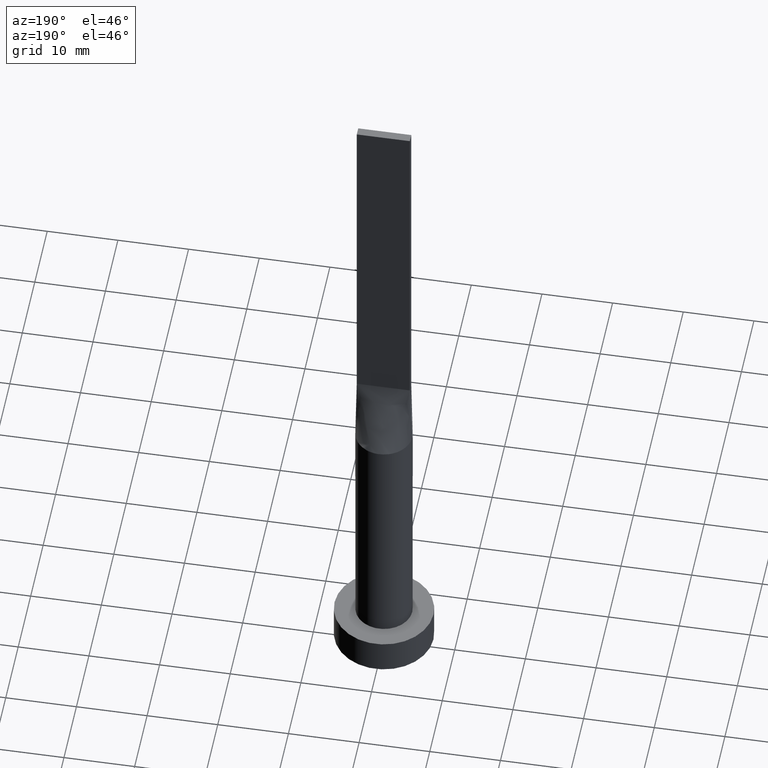
[diagram: clean part render]
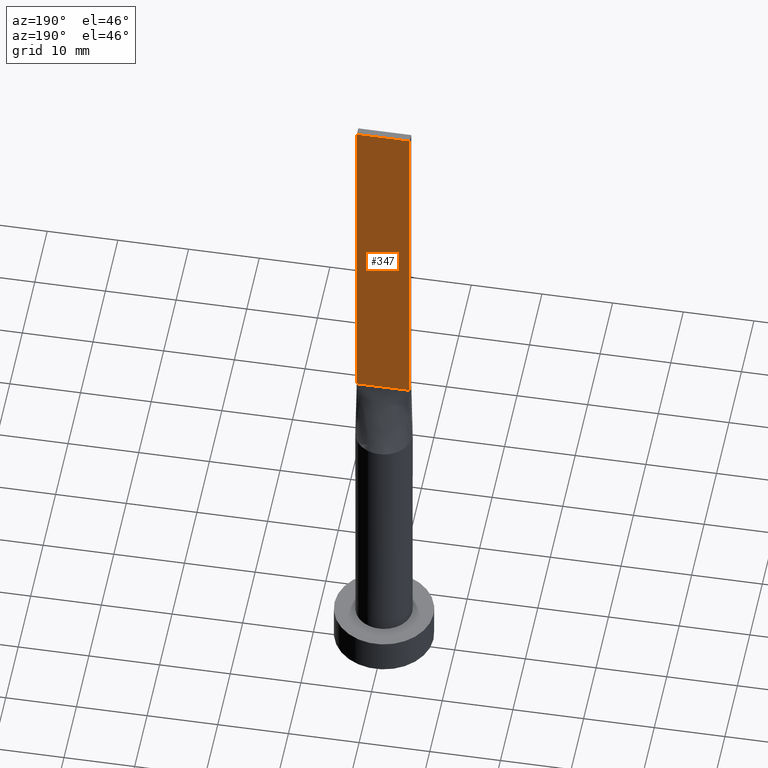
[diagram: same view with one face highlighted and labeled with its STEP entity id]
A machine part, auxiliary view. The second image highlights one B-rep face of the part: STEP entity #347.
In plain terms, the highlighted planar face has unit normal (0, -1, 0).
Its self-contained STEP definition (entity closure, byte-faithful):
#42 = ORIENTED_EDGE ( 'NONE', *, *, #313, .F. ) ;
#58 = CARTESIAN_POINT ( 'NONE',  ( 3.750000000000000000, 0.6000000000000001998, 100.0000000000000000 ) ) ;
#71 = LINE ( 'NONE', #102, #391 ) ;
#75 = DIRECTION ( 'NONE',  ( 0.000000000000000000, -0.000000000000000000, -1.000000000000000000 ) ) ;
#78 = VERTEX_POINT ( 'NONE', #384 ) ;
#79 = LINE ( 'NONE', #251, #185 ) ;
#102 = CARTESIAN_POINT ( 'NONE',  ( -3.750000000000000000, 0.6000000000000001998, 100.0000000000000000 ) ) ;
#111 = CARTESIAN_POINT ( 'NONE',  ( 3.750000000000000000, 0.6000000000000001998, 100.0000000000000000 ) ) ;
#168 = CARTESIAN_POINT ( 'NONE',  ( -3.750000000000000000, 0.6000000000000001998, 100.0000000000000000 ) ) ;
#185 = VECTOR ( 'NONE', #405, 1000.000000000000000 ) ;
#192 = LINE ( 'NONE', #58, #311 ) ;
#207 = DIRECTION ( 'NONE',  ( 0.000000000000000000, -1.000000000000000000, 0.000000000000000000 ) ) ;
#211 = EDGE_CURVE ( 'NONE', #78, #550, #533, .T. ) ;
#251 = CARTESIAN_POINT ( 'NONE',  ( 3.750000000000000000, 0.6000000000000001998, 100.0000000000000000 ) ) ;
#272 = ORIENTED_EDGE ( 'NONE', *, *, #383, .T. ) ;
#292 = PLANE ( 'NONE',  #342 ) ;
#298 = ORIENTED_EDGE ( 'NONE', *, *, #211, .T. ) ;
#311 = VECTOR ( 'NONE', #551, 1000.000000000000000 ) ;
#313 = EDGE_CURVE ( 'NONE', #397, #550, #71, .T. ) ;
#335 = CARTESIAN_POINT ( 'NONE',  ( -3.750000000000000000, 0.6000000000000001998, 50.00000000000000000 ) ) ;
#341 = CARTESIAN_POINT ( 'NONE',  ( 3.750000000000000000, 0.6000000000000001998, 100.0000000000000000 ) ) ;
#342 = AXIS2_PLACEMENT_3D ( 'NONE', #111, #207, #75 ) ;
#347 = ADVANCED_FACE ( 'NONE', ( #487 ), #292, .F. ) ;
#348 = VERTEX_POINT ( 'NONE', #341 ) ;
#383 = EDGE_CURVE ( 'NONE', #348, #78, #79, .T. ) ;
#384 = CARTESIAN_POINT ( 'NONE',  ( 3.750000000000000000, 0.6000000000000001998, 50.00000000000000000 ) ) ;
#391 = VECTOR ( 'NONE', #557, 1000.000000000000000 ) ;
#397 = VERTEX_POINT ( 'NONE', #168 ) ;
#403 = EDGE_CURVE ( 'NONE', #348, #397, #192, .T. ) ;
#405 = DIRECTION ( 'NONE',  ( -0.000000000000000000, -0.000000000000000000, -1.000000000000000000 ) ) ;
#413 = DIRECTION ( 'NONE',  ( -1.000000000000000000, -0.000000000000000000, -0.000000000000000000 ) ) ;
#416 = ORIENTED_EDGE ( 'NONE', *, *, #403, .F. ) ;
#487 = FACE_OUTER_BOUND ( 'NONE', #525, .T. ) ;
#525 = EDGE_LOOP ( 'NONE', ( #298, #42, #416, #272 ) ) ;
#533 = LINE ( 'NONE', #537, #575 ) ;
#537 = CARTESIAN_POINT ( 'NONE',  ( -3.750000000000000000, 0.6000000000000001998, 50.00000000000000000 ) ) ;
#550 = VERTEX_POINT ( 'NONE', #335 ) ;
#551 = DIRECTION ( 'NONE',  ( -1.000000000000000000, 0.000000000000000000, 0.000000000000000000 ) ) ;
#557 = DIRECTION ( 'NONE',  ( -0.000000000000000000, -0.000000000000000000, -1.000000000000000000 ) ) ;
#575 = VECTOR ( 'NONE', #413, 1000.000000000000000 ) ;